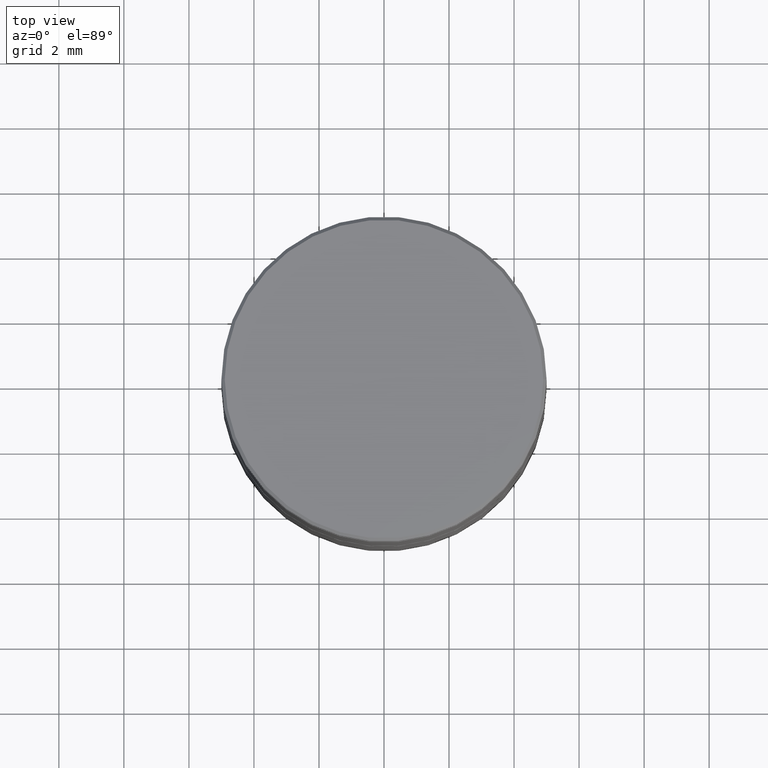
[diagram: clean part render]
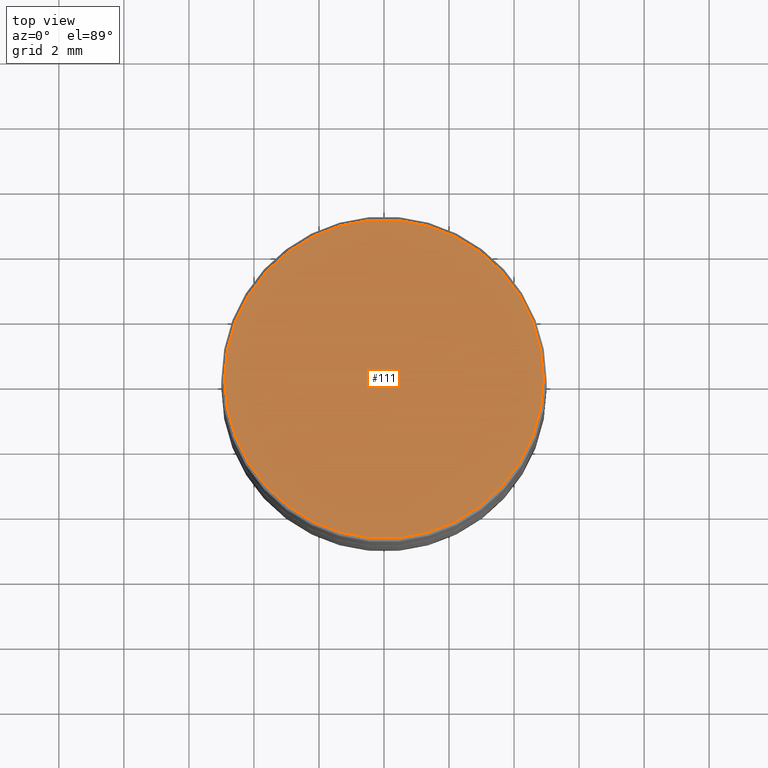
[diagram: same view with one face highlighted and labeled with its STEP entity id]
A machine part, top view. The second image highlights one B-rep face of the part: STEP entity #111.
In plain terms, the highlighted planar face has unit normal (0, -0, 1).
Its self-contained STEP definition (entity closure, byte-faithful):
#5 = FACE_OUTER_BOUND ( 'NONE', #1149, .T. ) ;
#30 = CARTESIAN_POINT ( 'NONE',  ( -4.900000000000004796, 0.000000000000000000, 0.000000000000000000 ) ) ;
#77 = VERTEX_POINT ( 'NONE', #30 ) ;
#111 = ADVANCED_FACE ( 'NONE', ( #5 ), #354, .T. ) ;
#232 = AXIS2_PLACEMENT_3D ( 'NONE', #293, #741, #727 ) ;
#293 = CARTESIAN_POINT ( 'NONE',  ( 0.000000000000000000, 0.000000000000000000, 0.000000000000000000 ) ) ;
#354 = PLANE ( 'NONE',  #686 ) ;
#448 = CARTESIAN_POINT ( 'NONE',  ( 0.000000000000000000, 0.000000000000000000, 0.000000000000000000 ) ) ;
#497 = EDGE_CURVE ( 'NONE', #77, #985, #908, .T. ) ;
#531 = ORIENTED_EDGE ( 'NONE', *, *, #919, .T. ) ;
#578 = CARTESIAN_POINT ( 'NONE',  ( 0.000000000000000000, 0.000000000000000000, 0.000000000000000000 ) ) ;
#601 = ORIENTED_EDGE ( 'NONE', *, *, #497, .T. ) ;
#657 = CARTESIAN_POINT ( 'NONE',  ( 4.900000000000004796, 6.062001655779401469E-16, 0.000000000000000000 ) ) ;
#686 = AXIS2_PLACEMENT_3D ( 'NONE', #448, #1070, #860 ) ;
#727 = DIRECTION ( 'NONE',  ( 1.000000000000000000, 0.000000000000000000, 0.000000000000000000 ) ) ;
#741 = DIRECTION ( 'NONE',  ( -0.000000000000000000, -0.000000000000000000, 1.000000000000000000 ) ) ;
#789 = DIRECTION ( 'NONE',  ( -0.000000000000000000, -0.000000000000000000, 1.000000000000000000 ) ) ;
#858 = AXIS2_PLACEMENT_3D ( 'NONE', #578, #789, #1012 ) ;
#860 = DIRECTION ( 'NONE',  ( 1.000000000000000000, 0.000000000000000000, 0.000000000000000000 ) ) ;
#908 = CIRCLE ( 'NONE', #232, 4.900000000000004796 ) ;
#919 = EDGE_CURVE ( 'NONE', #985, #77, #1066, .T. ) ;
#985 = VERTEX_POINT ( 'NONE', #657 ) ;
#1012 = DIRECTION ( 'NONE',  ( 1.000000000000000000, 0.000000000000000000, 0.000000000000000000 ) ) ;
#1066 = CIRCLE ( 'NONE', #858, 4.900000000000004796 ) ;
#1070 = DIRECTION ( 'NONE',  ( 0.000000000000000000, -0.000000000000000000, 1.000000000000000000 ) ) ;
#1149 = EDGE_LOOP ( 'NONE', ( #601, #531 ) ) ;